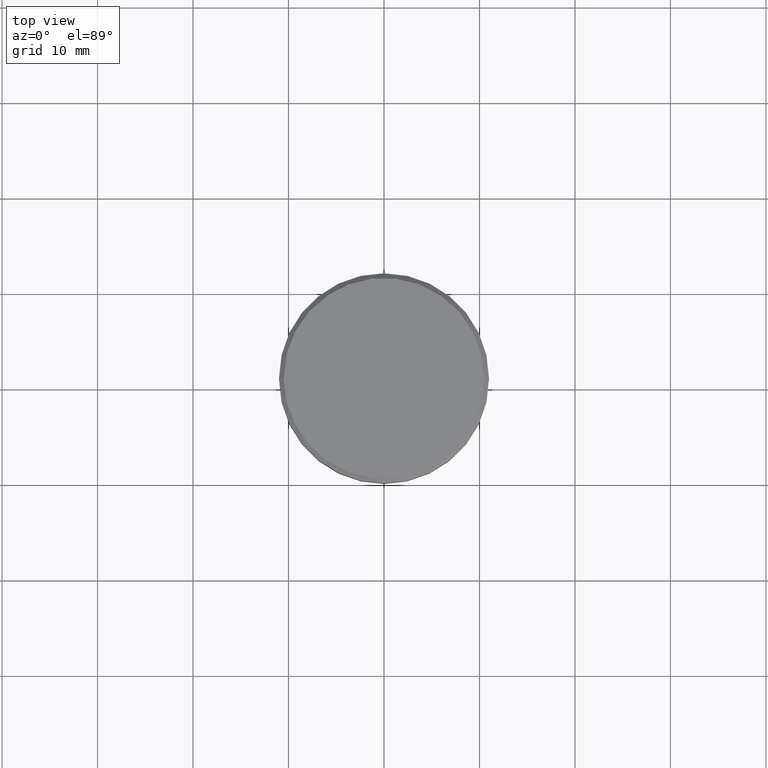
[diagram: clean part render]
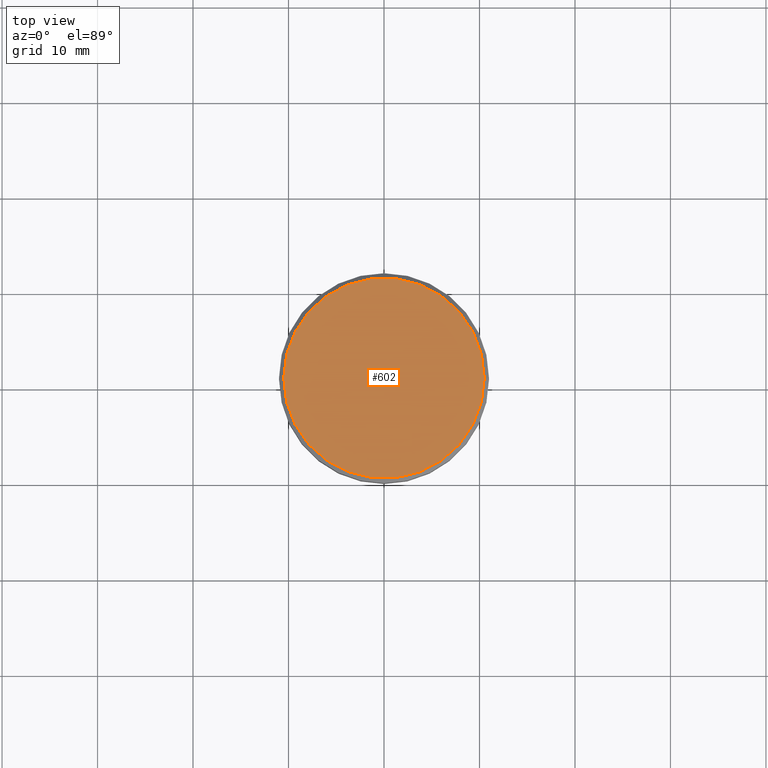
[diagram: same view with one face highlighted and labeled with its STEP entity id]
A machine part, top view. The second image highlights one B-rep face of the part: STEP entity #602.
In plain terms, the highlighted planar face has unit normal (0, -0, 1).
Its self-contained STEP definition (entity closure, byte-faithful):
#21 = EDGE_CURVE ( 'NONE', #782, #130, #169, .T. ) ;
#28 = PLANE ( 'NONE',  #172 ) ;
#70 = ORIENTED_EDGE ( 'NONE', *, *, #616, .T. ) ;
#97 = CARTESIAN_POINT ( 'NONE',  ( 10.49999999999998224, 1.316495309083403632E-15, 0.000000000000000000 ) ) ;
#130 = VERTEX_POINT ( 'NONE', #97 ) ;
#169 = CIRCLE ( 'NONE', #355, 10.49999999999998224 ) ;
#172 = AXIS2_PLACEMENT_3D ( 'NONE', #621, #974, #793 ) ;
#224 = EDGE_LOOP ( 'NONE', ( #994, #70 ) ) ;
#238 = DIRECTION ( 'NONE',  ( 1.000000000000000000, 0.000000000000000000, 0.000000000000000000 ) ) ;
#338 = CARTESIAN_POINT ( 'NONE',  ( 0.000000000000000000, 0.000000000000000000, 0.000000000000000000 ) ) ;
#341 = FACE_OUTER_BOUND ( 'NONE', #224, .T. ) ;
#355 = AXIS2_PLACEMENT_3D ( 'NONE', #338, #807, #909 ) ;
#489 = CIRCLE ( 'NONE', #1003, 10.49999999999998224 ) ;
#532 = DIRECTION ( 'NONE',  ( -0.000000000000000000, -0.000000000000000000, 1.000000000000000000 ) ) ;
#602 = ADVANCED_FACE ( 'NONE', ( #341 ), #28, .T. ) ;
#616 = EDGE_CURVE ( 'NONE', #130, #782, #489, .T. ) ;
#617 = CARTESIAN_POINT ( 'NONE',  ( 0.000000000000000000, 0.000000000000000000, 0.000000000000000000 ) ) ;
#621 = CARTESIAN_POINT ( 'NONE',  ( 0.000000000000000000, 0.000000000000000000, 0.000000000000000000 ) ) ;
#782 = VERTEX_POINT ( 'NONE', #917 ) ;
#793 = DIRECTION ( 'NONE',  ( 1.000000000000000000, 0.000000000000000000, 0.000000000000000000 ) ) ;
#807 = DIRECTION ( 'NONE',  ( -0.000000000000000000, -0.000000000000000000, 1.000000000000000000 ) ) ;
#909 = DIRECTION ( 'NONE',  ( 1.000000000000000000, 0.000000000000000000, 0.000000000000000000 ) ) ;
#917 = CARTESIAN_POINT ( 'NONE',  ( -10.49999999999998224, 0.000000000000000000, 0.000000000000000000 ) ) ;
#974 = DIRECTION ( 'NONE',  ( 0.000000000000000000, -0.000000000000000000, 1.000000000000000000 ) ) ;
#994 = ORIENTED_EDGE ( 'NONE', *, *, #21, .T. ) ;
#1003 = AXIS2_PLACEMENT_3D ( 'NONE', #617, #532, #238 ) ;